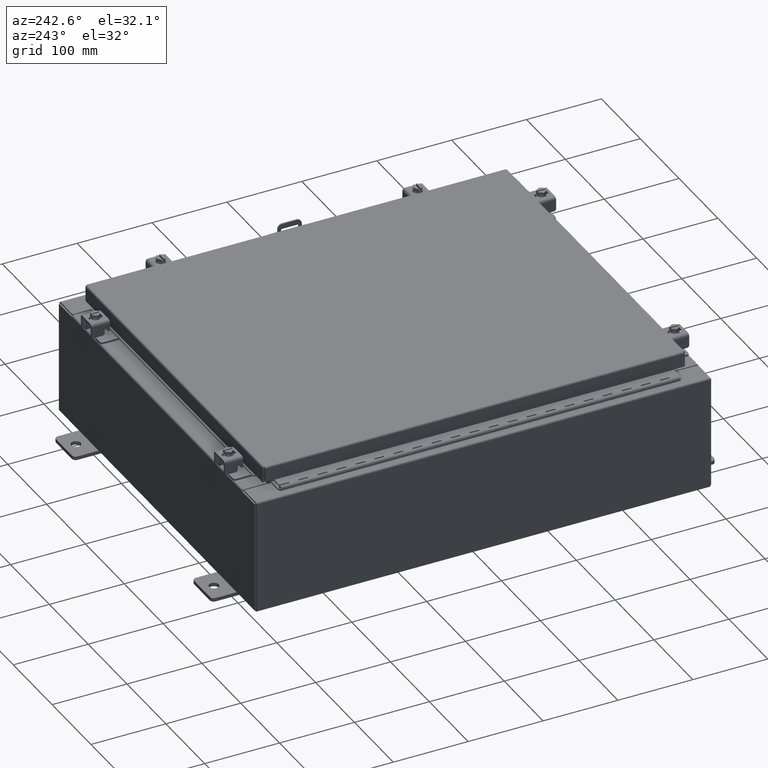
[diagram: clean part render]
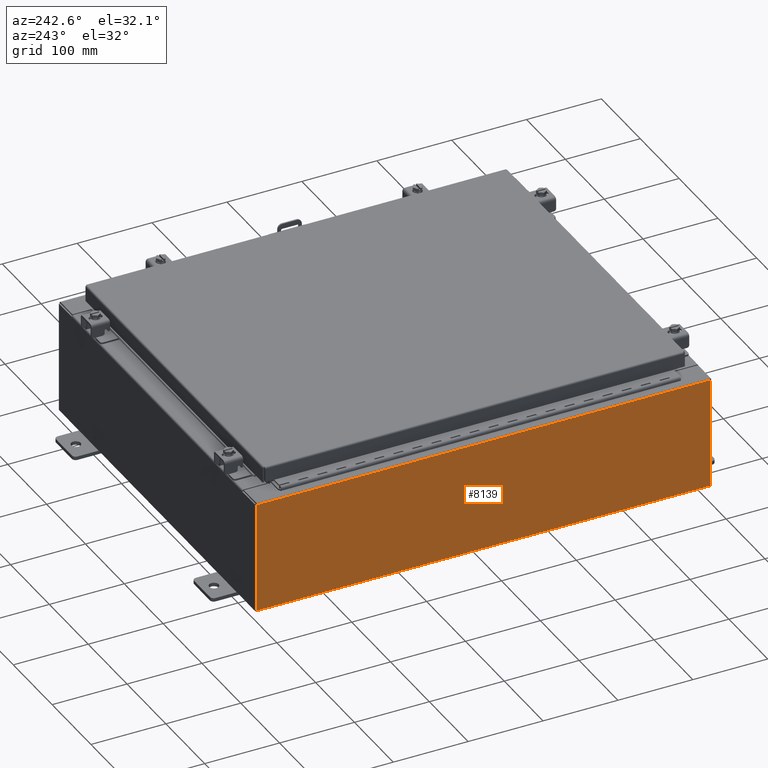
[diagram: same view with one face highlighted and labeled with its STEP entity id]
A machine part, auxiliary view. The second image highlights one B-rep face of the part: STEP entity #8139.
In plain terms, the highlighted planar face has unit normal (1, 0, 0).
Its self-contained STEP definition (entity closure, byte-faithful):
#1573 = LINE ( 'NONE', #22026, #7548 ) ;
#2055 = CARTESIAN_POINT ( 'NONE',  ( -10.00000000000000000, 11.92530000000000000, 0.01299999999999985900 ) ) ;
#3026 = DIRECTION ( 'NONE',  ( -3.319545939341922800E-015, 0.0000000000000000000, 1.000000000000000000 ) ) ;
#5997 = VERTEX_POINT ( 'NONE', #19844 ) ;
#6655 = EDGE_LOOP ( 'NONE', ( #25343, #29765, #30149, #22033 ) ) ;
#7110 = VERTEX_POINT ( 'NONE', #2055 ) ;
#7267 = CARTESIAN_POINT ( 'NONE',  ( -10.00000000000000000, 11.92530000000000000, 0.01299999999999986800 ) ) ;
#7548 = VECTOR ( 'NONE', #11943, 39.37007874015748100 ) ;
#8139 = ADVANCED_FACE ( 'NONE', ( #10552 ), #16116, .F. ) ;
#8503 = DIRECTION ( 'NONE',  ( 3.319545939341922800E-015, 0.0000000000000000000, -1.000000000000000000 ) ) ;
#9936 = EDGE_CURVE ( 'NONE', #5997, #20868, #21171, .T. ) ;
#10552 = FACE_OUTER_BOUND ( 'NONE', #6655, .T. ) ;
#10840 = CARTESIAN_POINT ( 'NONE',  ( -10.00000000000000000, 11.92530000000000000, -3.344806387242682200E-014 ) ) ;
#11922 = EDGE_CURVE ( 'NONE', #20868, #17467, #1573, .T. ) ;
#11943 = DIRECTION ( 'NONE',  ( 0.0000000000000000000, 1.000000000000000000, 0.0000000000000000000 ) ) ;
#12035 = EDGE_CURVE ( 'NONE', #5997, #7110, #30614, .T. ) ;
#15227 = VECTOR ( 'NONE', #3026, 39.37007874015748100 ) ;
#15484 = LINE ( 'NONE', #10840, #20627 ) ;
#16116 = PLANE ( 'NONE',  #32352 ) ;
#16230 = DIRECTION ( 'NONE',  ( 3.319545939341922800E-015, 0.0000000000000000000, -1.000000000000000000 ) ) ;
#17467 = VERTEX_POINT ( 'NONE', #18574 ) ;
#18243 = CARTESIAN_POINT ( 'NONE',  ( -10.00000000000000000, -11.92530000000000000, -3.344806387242682200E-014 ) ) ;
#18574 = CARTESIAN_POINT ( 'NONE',  ( -10.00000000000002000, 11.92530000000000000, 5.837599999999999200 ) ) ;
#18787 = EDGE_CURVE ( 'NONE', #17467, #7110, #15484, .T. ) ;
#19844 = CARTESIAN_POINT ( 'NONE',  ( -10.00000000000000000, -11.92529999999999800, 0.01299999999999986800 ) ) ;
#20627 = VECTOR ( 'NONE', #8503, 39.37007874015748100 ) ;
#20868 = VERTEX_POINT ( 'NONE', #29994 ) ;
#21171 = LINE ( 'NONE', #18243, #15227 ) ;
#22026 = CARTESIAN_POINT ( 'NONE',  ( -10.00000000000002300, -11.92530000000000000, 5.837599999999999200 ) ) ;
#22033 = ORIENTED_EDGE ( 'NONE', *, *, #9936, .T. ) ;
#25343 = ORIENTED_EDGE ( 'NONE', *, *, #11922, .T. ) ;
#26358 = CARTESIAN_POINT ( 'NONE',  ( -10.00000000000000000, 0.0000000000000000000, -3.344806387242682200E-014 ) ) ;
#29765 = ORIENTED_EDGE ( 'NONE', *, *, #18787, .T. ) ;
#29808 = VECTOR ( 'NONE', #32511, 39.37007874015748100 ) ;
#29994 = CARTESIAN_POINT ( 'NONE',  ( -10.00000000000002300, -11.92529999999999600, 5.837599999999999200 ) ) ;
#30149 = ORIENTED_EDGE ( 'NONE', *, *, #12035, .F. ) ;
#30614 = LINE ( 'NONE', #7267, #29808 ) ;
#31464 = DIRECTION ( 'NONE',  ( 1.000000000000000000, 0.0000000000000000000, 3.319545939341922800E-015 ) ) ;
#32352 = AXIS2_PLACEMENT_3D ( 'NONE', #26358, #31464, #16230 ) ;
#32511 = DIRECTION ( 'NONE',  ( -0.0000000000000000000, 1.000000000000000000, -0.0000000000000000000 ) ) ;